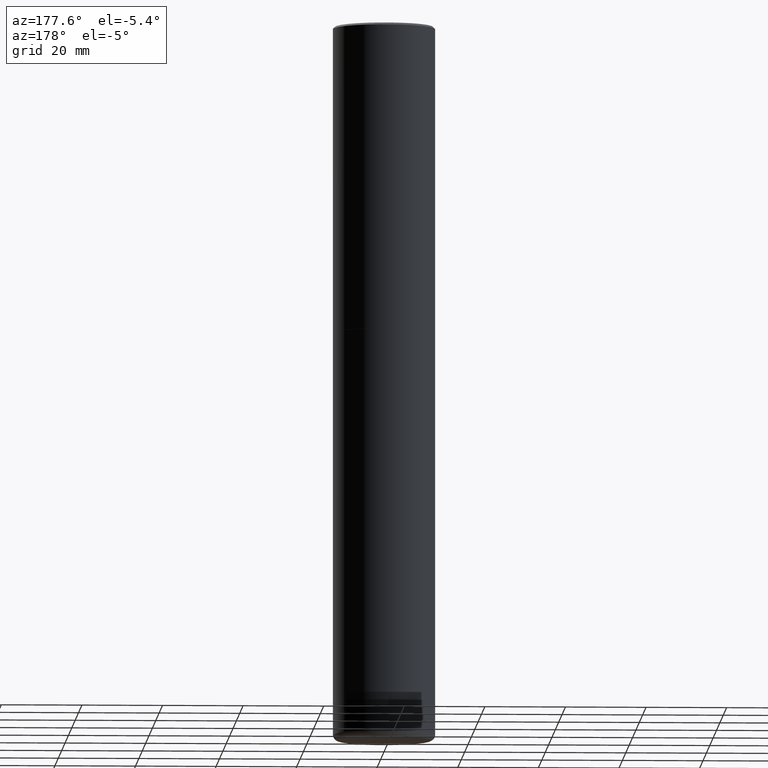
[diagram: clean part render]
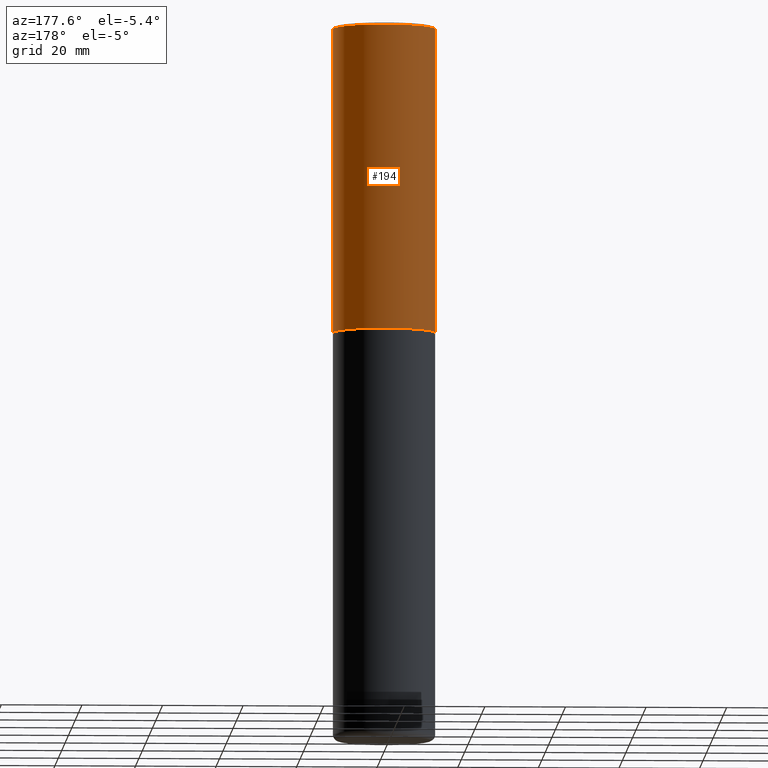
[diagram: same view with one face highlighted and labeled with its STEP entity id]
A machine part, auxiliary view. The second image highlights one B-rep face of the part: STEP entity #194.
In plain terms, the highlighted cylindrical surface (partial cylindrical patch) has radius 12.7 mm, axis along (-0, 0, 1).
Its self-contained STEP definition (entity closure, byte-faithful):
#3 = CARTESIAN_POINT ( 'NONE',  ( 4.890937612370299433E-31, -6.982962677686328587E-17, -0.02000000000000010797 ) ) ;
#22 = EDGE_CURVE ( 'NONE', #258, #331, #172, .T. ) ;
#32 = DIRECTION ( 'NONE',  ( 1.000000000000000000, -6.982962677686265922E-15, 0.000000000000000000 ) ) ;
#44 = CARTESIAN_POINT ( 'NONE',  ( 0.5000000000000002220, -3.491481338843134933E-15, 2.438088387897969017E-29 ) ) ;
#68 = EDGE_CURVE ( 'NONE', #395, #331, #311, .T. ) ;
#74 = DIRECTION ( 'NONE',  ( -2.445468806185136597E-29, 3.491481338843145583E-15, 1.000000000000000000 ) ) ;
#98 = CARTESIAN_POINT ( 'NONE',  ( 0.000000000000000000, 0.000000000000000000, 0.000000000000000000 ) ) ;
#109 = CARTESIAN_POINT ( 'NONE',  ( -0.5000000000000003331, -1.717677402183223054E-15, -2.999000000000000110 ) ) ;
#117 = CIRCLE ( 'NONE', #220, 0.5000000000000003331 ) ;
#127 = DIRECTION ( 'NONE',  ( -2.445468806185136597E-29, 3.491481338843145583E-15, 1.000000000000000000 ) ) ;
#132 = VECTOR ( 'NONE', #304, 39.37007874015748143 ) ;
#138 = LINE ( 'NONE', #44, #132 ) ;
#139 = ORIENTED_EDGE ( 'NONE', *, *, #68, .F. ) ;
#171 = CARTESIAN_POINT ( 'NONE',  ( 0.5000000000000001110, -3.500078625662629868E-15, -0.02000000000000010797 ) ) ;
#172 = LINE ( 'NONE', #207, #283 ) ;
#194 = ADVANCED_FACE ( 'NONE', ( #269 ), #386, .T. ) ;
#205 = DIRECTION ( 'NONE',  ( 1.000000000000000000, -6.982962677686265922E-15, 0.000000000000000000 ) ) ;
#207 = CARTESIAN_POINT ( 'NONE',  ( -0.5000000000000002220, 3.552713678800502507E-15, -2.459467545127454012E-29 ) ) ;
#219 = CARTESIAN_POINT ( 'NONE',  ( -0.5000000000000001110, 3.421651712066270452E-15, -0.02000000000000010797 ) ) ;
#220 = AXIS2_PLACEMENT_3D ( 'NONE', #362, #74, #205 ) ;
#234 = DIRECTION ( 'NONE',  ( 1.000000000000000000, -6.982962677686266711E-15, 4.876176775795935793E-29 ) ) ;
#250 = EDGE_LOOP ( 'NONE', ( #330, #368, #139, #392 ) ) ;
#258 = VERTEX_POINT ( 'NONE', #109 ) ;
#269 = FACE_OUTER_BOUND ( 'NONE', #250, .T. ) ;
#279 = AXIS2_PLACEMENT_3D ( 'NONE', #98, #418, #234 ) ;
#281 = VERTEX_POINT ( 'NONE', #339 ) ;
#283 = VECTOR ( 'NONE', #301, 39.37007874015748143 ) ;
#301 = DIRECTION ( 'NONE',  ( -2.445468806185136877E-29, 3.491481338843145188E-15, 1.000000000000000000 ) ) ;
#304 = DIRECTION ( 'NONE',  ( -2.445468806185136877E-29, 3.491481338843145188E-15, 1.000000000000000000 ) ) ;
#311 = CIRCLE ( 'NONE', #318, 0.5000000000000001110 ) ;
#318 = AXIS2_PLACEMENT_3D ( 'NONE', #3, #127, #32 ) ;
#330 = ORIENTED_EDGE ( 'NONE', *, *, #401, .T. ) ;
#331 = VERTEX_POINT ( 'NONE', #219 ) ;
#339 = CARTESIAN_POINT ( 'NONE',  ( 0.5000000000000003331, -1.396243387403372828E-14, -2.999000000000000110 ) ) ;
#362 = CARTESIAN_POINT ( 'NONE',  ( 7.333960949749225308E-29, -1.047095253519059177E-14, -2.999000000000000110 ) ) ;
#368 = ORIENTED_EDGE ( 'NONE', *, *, #22, .T. ) ;
#386 = CYLINDRICAL_SURFACE ( 'NONE', #279, 0.5000000000000002220 ) ;
#392 = ORIENTED_EDGE ( 'NONE', *, *, #410, .F. ) ;
#395 = VERTEX_POINT ( 'NONE', #171 ) ;
#401 = EDGE_CURVE ( 'NONE', #281, #258, #117, .T. ) ;
#410 = EDGE_CURVE ( 'NONE', #281, #395, #138, .T. ) ;
#418 = DIRECTION ( 'NONE',  ( -2.445468806185136597E-29, 3.491481338843145583E-15, 1.000000000000000000 ) ) ;